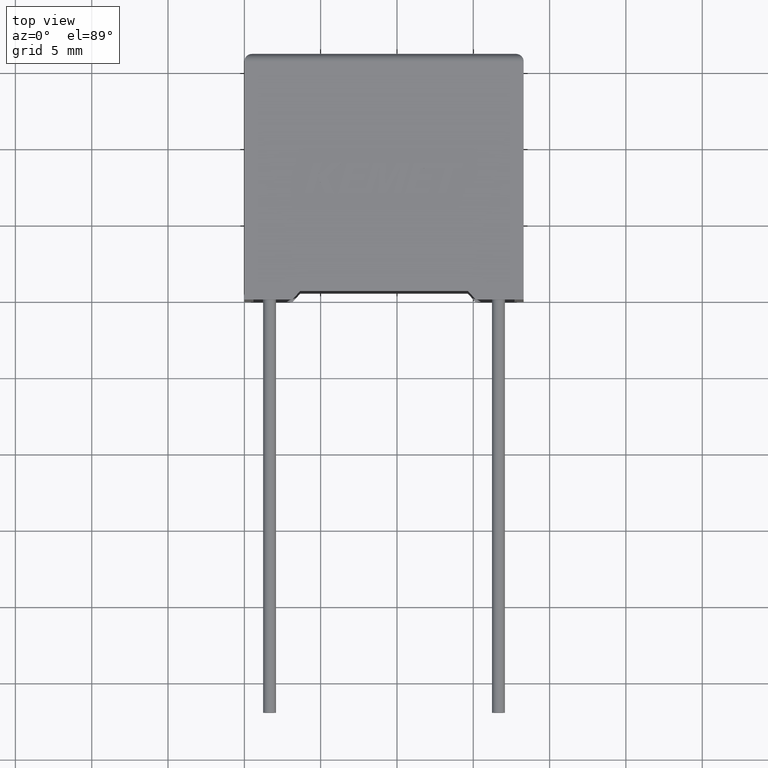
[diagram: clean part render]
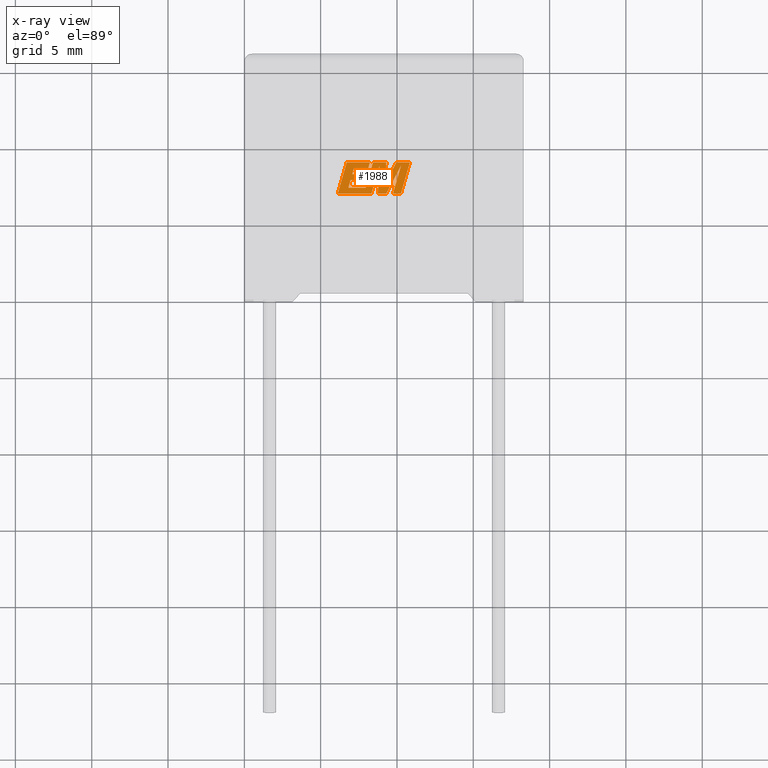
[diagram: x-ray — body ghosted, one internal face saturated and labeled with its STEP entity id]
A machine part, top view, then the same camera in x-ray: the body is ghosted and one INTERNAL B-rep face — a face not visible from any outside direction — is saturated and labeled: STEP entity #1988.
In plain terms, the highlighted planar face has unit normal (0, 0, -1).
Its self-contained STEP definition (entity closure, byte-faithful):
#18 = DIRECTION ( 'NONE',  ( -0.2760118818968579912, -0.9611542233438683525, 0.000000000000000000 ) ) ;
#32 = VECTOR ( 'NONE', #1410, 999.9999999999998863 ) ;
#55 = LINE ( 'NONE', #2403, #1415 ) ;
#104 = ORIENTED_EDGE ( 'NONE', *, *, #2949, .F. ) ;
#106 = LINE ( 'NONE', #1028, #1951 ) ;
#114 = EDGE_CURVE ( 'NONE', #2708, #2861, #2817, .T. ) ;
#200 = CARTESIAN_POINT ( 'NONE',  ( 8.327195703898469858, 6.927829999999937094, 10.19999999999999929 ) ) ;
#215 = DIRECTION ( 'NONE',  ( 1.000000000000000000, 0.000000000000000000, 0.000000000000000000 ) ) ;
#222 = DIRECTION ( 'NONE',  ( -0.2762517575166416606, -0.9610853065513833560, 0.000000000000000000 ) ) ;
#248 = VERTEX_POINT ( 'NONE', #1706 ) ;
#264 = LINE ( 'NONE', #1129, #2506 ) ;
#273 = VERTEX_POINT ( 'NONE', #2152 ) ;
#329 = DIRECTION ( 'NONE',  ( 0.4668459304955080436, 0.8843386665637680277, 0.000000000000000000 ) ) ;
#333 = VECTOR ( 'NONE', #2058, 1000.000000000000227 ) ;
#348 = CARTESIAN_POINT ( 'NONE',  ( 10.25761595853780150, 6.927829999999937094, 10.19999999999999929 ) ) ;
#349 = CARTESIAN_POINT ( 'NONE',  ( 7.947244424658283179, 8.206169767896147604, 10.19999999999999929 ) ) ;
#357 = EDGE_CURVE ( 'NONE', #1014, #1178, #3040, .T. ) ;
#359 = LINE ( 'NONE', #614, #1059 ) ;
#363 = EDGE_CURVE ( 'NONE', #529, #2620, #689, .T. ) ;
#377 = VECTOR ( 'NONE', #2312, 1000.000000000000227 ) ;
#399 = LINE ( 'NONE', #1494, #333 ) ;
#449 = ORIENTED_EDGE ( 'NONE', *, *, #1703, .F. ) ;
#461 = VERTEX_POINT ( 'NONE', #2870 ) ;
#488 = VERTEX_POINT ( 'NONE', #1471 ) ;
#501 = LINE ( 'NONE', #1623, #756 ) ;
#506 = VERTEX_POINT ( 'NONE', #1530 ) ;
#524 = VECTOR ( 'NONE', #2537, 1000.000000000000000 ) ;
#526 = DIRECTION ( 'NONE',  ( 0.05375259206908576670, 0.9985542843760946141, 0.000000000000000000 ) ) ;
#529 = VERTEX_POINT ( 'NONE', #1076 ) ;
#541 = EDGE_LOOP ( 'NONE', ( #2835, #1008, #585, #1069, #956, #1049, #1348, #951, #2865, #1634, #657, #2772, #2273, #104, #449, #3047, #1948, #2730, #1974, #2015, #2062, #746, #1292 ) ) ;
#548 = EDGE_CURVE ( 'NONE', #461, #2708, #784, .T. ) ;
#567 = VECTOR ( 'NONE', #2584, 1000.000000000000227 ) ;
#583 = VECTOR ( 'NONE', #3036, 1000.000000000000000 ) ;
#585 = ORIENTED_EDGE ( 'NONE', *, *, #2530, .F. ) ;
#592 = LINE ( 'NONE', #1534, #713 ) ;
#597 = EDGE_CURVE ( 'NONE', #2396, #2889, #2324, .T. ) ;
#614 = CARTESIAN_POINT ( 'NONE',  ( 10.84693527213674891, 8.977583738474084640, 10.19999999999999929 ) ) ;
#650 = EDGE_CURVE ( 'NONE', #1780, #2108, #1437, .T. ) ;
#657 = ORIENTED_EDGE ( 'NONE', *, *, #1163, .F. ) ;
#674 = LINE ( 'NONE', #1591, #583 ) ;
#689 = LINE ( 'NONE', #2797, #524 ) ;
#713 = VECTOR ( 'NONE', #2479, 1000.000000000000000 ) ;
#736 = DIRECTION ( 'NONE',  ( -0.4443210308329518243, -0.8958676361826801715, 0.000000000000000000 ) ) ;
#746 = ORIENTED_EDGE ( 'NONE', *, *, #2677, .F. ) ;
#756 = VECTOR ( 'NONE', #215, 1000.000000000000000 ) ;
#769 = DIRECTION ( 'NONE',  ( -1.000000000000000000, 0.000000000000000000, 0.000000000000000000 ) ) ;
#772 = EDGE_CURVE ( 'NONE', #2969, #529, #2917, .T. ) ;
#783 = CARTESIAN_POINT ( 'NONE',  ( 7.839011005306755209, 7.827240615357460740, 10.19999999999999929 ) ) ;
#784 = LINE ( 'NONE', #1803, #791 ) ;
#791 = VECTOR ( 'NONE', #329, 1000.000000000000000 ) ;
#856 = LINE ( 'NONE', #1112, #2154 ) ;
#897 = LINE ( 'NONE', #2328, #1053 ) ;
#906 = EDGE_CURVE ( 'NONE', #2620, #1505, #1382, .T. ) ;
#922 = CARTESIAN_POINT ( 'NONE',  ( 8.851161128560534053, 8.752671875984306737, 10.19999999999999929 ) ) ;
#951 = ORIENTED_EDGE ( 'NONE', *, *, #906, .F. ) ;
#956 = ORIENTED_EDGE ( 'NONE', *, *, #548, .F. ) ;
#976 = VERTEX_POINT ( 'NONE', #2415 ) ;
#1007 = CARTESIAN_POINT ( 'NONE',  ( 9.221647422191399102, 7.513213331603875389, 10.19999999999999929 ) ) ;
#1008 = ORIENTED_EDGE ( 'NONE', *, *, #2614, .F. ) ;
#1014 = VERTEX_POINT ( 'NONE', #783 ) ;
#1015 = DIRECTION ( 'NONE',  ( 1.000000000000000000, 0.000000000000000000, 0.000000000000000000 ) ) ;
#1028 = CARTESIAN_POINT ( 'NONE',  ( 8.748873504561524683, 6.927829999999937094, 10.19999999999999929 ) ) ;
#1032 = EDGE_CURVE ( 'NONE', #248, #2577, #2977, .T. ) ;
#1049 = ORIENTED_EDGE ( 'NONE', *, *, #3025, .F. ) ;
#1053 = VECTOR ( 'NONE', #222, 1000.000000000000227 ) ;
#1059 = VECTOR ( 'NONE', #2709, 1000.000000000000000 ) ;
#1069 = ORIENTED_EDGE ( 'NONE', *, *, #114, .F. ) ;
#1076 = CARTESIAN_POINT ( 'NONE',  ( 6.118980910089239167, 6.927829999999936206, 10.19999999999999929 ) ) ;
#1103 = CARTESIAN_POINT ( 'NONE',  ( -0.2224830842431323175, 0.2934434973618236242, 10.19999999999999929 ) ) ;
#1110 = DIRECTION ( 'NONE',  ( 0.2746459304916892830, 0.9615454294334481178, 0.000000000000000000 ) ) ;
#1112 = CARTESIAN_POINT ( 'NONE',  ( 9.736741848859448822, 6.927829999999937094, 10.19999999999999929 ) ) ;
#1129 = CARTESIAN_POINT ( 'NONE',  ( 10.25761595853780150, 6.927829999999937094, 10.19999999999999929 ) ) ;
#1160 = CARTESIAN_POINT ( 'NONE',  ( 7.950472854412912405, 7.317796892129776687, 10.19999999999999929 ) ) ;
#1163 = EDGE_CURVE ( 'NONE', #2889, #2969, #2458, .T. ) ;
#1178 = VERTEX_POINT ( 'NONE', #349 ) ;
#1179 = CARTESIAN_POINT ( 'NONE',  ( 7.067466152442150040, 8.206169767896147604, 10.19999999999999929 ) ) ;
#1243 = CARTESIAN_POINT ( 'NONE',  ( 8.112293221804671717, 8.587423639161658073, 10.19999999999999929 ) ) ;
#1249 = VECTOR ( 'NONE', #1110, 1000.000000000000000 ) ;
#1292 = ORIENTED_EDGE ( 'NONE', *, *, #650, .F. ) ;
#1343 = FACE_OUTER_BOUND ( 'NONE', #541, .T. ) ;
#1348 = ORIENTED_EDGE ( 'NONE', *, *, #2515, .F. ) ;
#1353 = CARTESIAN_POINT ( 'NONE',  ( 9.300475089700450226, 8.977583738474084640, 10.19999999999999929 ) ) ;
#1382 = LINE ( 'NONE', #2997, #567 ) ;
#1383 = CARTESIAN_POINT ( 'NONE',  ( 6.959357382888240018, 7.827240615357460740, 10.19999999999999929 ) ) ;
#1384 = CARTESIAN_POINT ( 'NONE',  ( 9.300475089700450226, 8.977583738474084640, 10.19999999999999929 ) ) ;
#1398 = CARTESIAN_POINT ( 'NONE',  ( 7.839011005306755209, 7.827240615357460740, 10.19999999999999929 ) ) ;
#1410 = DIRECTION ( 'NONE',  ( -0.2765379750249963853, -0.9610029908221278117, 0.000000000000000000 ) ) ;
#1415 = VECTOR ( 'NONE', #769, 1000.000000000000000 ) ;
#1421 = CARTESIAN_POINT ( 'NONE',  ( 8.112293221804671717, 8.587423639161658073, 10.19999999999999929 ) ) ;
#1436 = EDGE_CURVE ( 'NONE', #1873, #2184, #1871, .T. ) ;
#1437 = LINE ( 'NONE', #2181, #2387 ) ;
#1471 = CARTESIAN_POINT ( 'NONE',  ( 7.067466152442150040, 8.206169767896147604, 10.19999999999999929 ) ) ;
#1494 = CARTESIAN_POINT ( 'NONE',  ( 8.851161128560534053, 8.752671875984306737, 10.19999999999999929 ) ) ;
#1505 = VERTEX_POINT ( 'NONE', #922 ) ;
#1530 = CARTESIAN_POINT ( 'NONE',  ( 7.178404472403894232, 8.587423639161658073, 10.19999999999999929 ) ) ;
#1534 = CARTESIAN_POINT ( 'NONE',  ( 7.947244424658283179, 8.206169767896147604, 10.19999999999999929 ) ) ;
#1591 = CARTESIAN_POINT ( 'NONE',  ( 7.178404472403894232, 8.587423639161658073, 10.19999999999999929 ) ) ;
#1617 = EDGE_CURVE ( 'NONE', #2184, #2573, #897, .T. ) ;
#1623 = CARTESIAN_POINT ( 'NONE',  ( 6.959357382888240018, 7.827240615357460740, 10.19999999999999929 ) ) ;
#1634 = ORIENTED_EDGE ( 'NONE', *, *, #772, .F. ) ;
#1653 = DIRECTION ( 'NONE',  ( 0.2763139702539113007, 0.9610674221107073922, 0.000000000000000000 ) ) ;
#1661 = CARTESIAN_POINT ( 'NONE',  ( 6.708817521994718369, 8.977583738474084640, 10.19999999999999929 ) ) ;
#1703 = EDGE_CURVE ( 'NONE', #1178, #488, #592, .T. ) ;
#1706 = CARTESIAN_POINT ( 'NONE',  ( 6.814202693454946669, 7.317796892129776687, 10.19999999999999929 ) ) ;
#1750 = CARTESIAN_POINT ( 'NONE',  ( 8.427557490167984611, 8.977583738474084640, 10.19999999999999929 ) ) ;
#1780 = VERTEX_POINT ( 'NONE', #2027 ) ;
#1803 = CARTESIAN_POINT ( 'NONE',  ( 9.295319520239521793, 6.927829999999937094, 10.19999999999999929 ) ) ;
#1843 = VECTOR ( 'NONE', #2275, 1000.000000000000000 ) ;
#1848 = DIRECTION ( 'NONE',  ( 0.2793947940878294123, 0.9601763114327593884, 0.000000000000000000 ) ) ;
#1859 = VECTOR ( 'NONE', #1848, 1000.000000000000227 ) ;
#1871 = LINE ( 'NONE', #1353, #2649 ) ;
#1873 = VERTEX_POINT ( 'NONE', #1384 ) ;
#1926 = EDGE_CURVE ( 'NONE', #2573, #248, #55, .T. ) ;
#1948 = ORIENTED_EDGE ( 'NONE', *, *, #2630, .F. ) ;
#1951 = VECTOR ( 'NONE', #2932, 1000.000000000000000 ) ;
#1974 = ORIENTED_EDGE ( 'NONE', *, *, #1926, .F. ) ;
#1988 = ADVANCED_FACE ( 'NONE', ( #1343 ), #2286, .T. ) ;
#2015 = ORIENTED_EDGE ( 'NONE', *, *, #1617, .F. ) ;
#2027 = CARTESIAN_POINT ( 'NONE',  ( 9.947927223384223083, 8.977583738474084640, 10.19999999999999929 ) ) ;
#2052 = DIRECTION ( 'NONE',  ( 0.000000000000000000, 0.000000000000000000, -1.000000000000000000 ) ) ;
#2058 = DIRECTION ( 'NONE',  ( -0.05596501978069369498, -0.9984327301130239141, 0.000000000000000000 ) ) ;
#2062 = ORIENTED_EDGE ( 'NONE', *, *, #1436, .F. ) ;
#2099 = VERTEX_POINT ( 'NONE', #348 ) ;
#2108 = VERTEX_POINT ( 'NONE', #2474 ) ;
#2152 = CARTESIAN_POINT ( 'NONE',  ( 10.84693527213674891, 8.977583738474084640, 10.19999999999999929 ) ) ;
#2154 = VECTOR ( 'NONE', #1015, 1000.000000000000000 ) ;
#2181 = CARTESIAN_POINT ( 'NONE',  ( 9.947927223384223083, 8.977583738474084640, 10.19999999999999929 ) ) ;
#2184 = VERTEX_POINT ( 'NONE', #1750 ) ;
#2203 = EDGE_CURVE ( 'NONE', #273, #1780, #359, .T. ) ;
#2273 = ORIENTED_EDGE ( 'NONE', *, *, #2875, .F. ) ;
#2275 = DIRECTION ( 'NONE',  ( -1.000000000000000000, 0.000000000000000000, 0.000000000000000000 ) ) ;
#2286 = PLANE ( 'NONE',  #2754 ) ;
#2312 = DIRECTION ( 'NONE',  ( 0.2732148821746286371, 0.9619530280415482526, 0.000000000000000000 ) ) ;
#2317 = CARTESIAN_POINT ( 'NONE',  ( 8.223106891968908982, 8.977583738474084640, 10.19999999999999929 ) ) ;
#2324 = LINE ( 'NONE', #1421, #377 ) ;
#2328 = CARTESIAN_POINT ( 'NONE',  ( 8.427557490167984611, 8.977583738474084640, 10.19999999999999929 ) ) ;
#2346 = DIRECTION ( 'NONE',  ( -1.000000000000000000, 0.000000000000000000, 0.000000000000000000 ) ) ;
#2367 = LINE ( 'NONE', #1179, #1859 ) ;
#2381 = LINE ( 'NONE', #1007, #2707 ) ;
#2387 = VECTOR ( 'NONE', #736, 1000.000000000000227 ) ;
#2396 = VERTEX_POINT ( 'NONE', #1243 ) ;
#2403 = CARTESIAN_POINT ( 'NONE',  ( 7.950472854412912405, 7.317796892129776687, 10.19999999999999929 ) ) ;
#2404 = CARTESIAN_POINT ( 'NONE',  ( 10.26329998931311138, 8.761459686718483297, 10.19999999999999929 ) ) ;
#2415 = CARTESIAN_POINT ( 'NONE',  ( 8.748873504561524683, 6.927829999999937094, 10.19999999999999929 ) ) ;
#2435 = VECTOR ( 'NONE', #2945, 1000.000000000000114 ) ;
#2458 = LINE ( 'NONE', #2763, #1843 ) ;
#2474 = CARTESIAN_POINT ( 'NONE',  ( 9.221647422191399102, 7.513213331603875389, 10.19999999999999929 ) ) ;
#2479 = DIRECTION ( 'NONE',  ( -1.000000000000000000, 0.000000000000000000, 0.000000000000000000 ) ) ;
#2506 = VECTOR ( 'NONE', #1653, 1000.000000000000114 ) ;
#2515 = EDGE_CURVE ( 'NONE', #1505, #976, #399, .T. ) ;
#2530 = EDGE_CURVE ( 'NONE', #2861, #2099, #856, .T. ) ;
#2537 = DIRECTION ( 'NONE',  ( 1.000000000000000000, 0.000000000000000000, 0.000000000000000000 ) ) ;
#2567 = CARTESIAN_POINT ( 'NONE',  ( 9.736741848859448822, 6.927829999999937094, 10.19999999999999929 ) ) ;
#2573 = VERTEX_POINT ( 'NONE', #1160 ) ;
#2577 = VERTEX_POINT ( 'NONE', #1383 ) ;
#2584 = DIRECTION ( 'NONE',  ( 0.2759782365590697228, 0.9611638845408965182, 0.000000000000000000 ) ) ;
#2614 = EDGE_CURVE ( 'NONE', #2099, #273, #264, .T. ) ;
#2620 = VERTEX_POINT ( 'NONE', #200 ) ;
#2630 = EDGE_CURVE ( 'NONE', #2577, #1014, #501, .T. ) ;
#2637 = VECTOR ( 'NONE', #18, 1000.000000000000227 ) ;
#2649 = VECTOR ( 'NONE', #3017, 1000.000000000000000 ) ;
#2674 = CARTESIAN_POINT ( 'NONE',  ( 6.814202693454946669, 7.317796892129776687, 10.19999999999999929 ) ) ;
#2677 = EDGE_CURVE ( 'NONE', #2108, #1873, #2381, .T. ) ;
#2707 = VECTOR ( 'NONE', #526, 1000.000000000000000 ) ;
#2708 = VERTEX_POINT ( 'NONE', #2404 ) ;
#2709 = DIRECTION ( 'NONE',  ( -1.000000000000000000, 0.000000000000000000, 0.000000000000000000 ) ) ;
#2730 = ORIENTED_EDGE ( 'NONE', *, *, #1032, .F. ) ;
#2754 = AXIS2_PLACEMENT_3D ( 'NONE', #1103, #2052, #2346 ) ;
#2763 = CARTESIAN_POINT ( 'NONE',  ( 8.223106891968908982, 8.977583738474084640, 10.19999999999999929 ) ) ;
#2772 = ORIENTED_EDGE ( 'NONE', *, *, #597, .F. ) ;
#2785 = CARTESIAN_POINT ( 'NONE',  ( 10.26329998931311138, 8.761459686718483297, 10.19999999999999929 ) ) ;
#2797 = CARTESIAN_POINT ( 'NONE',  ( 7.962345746009985348, 6.927829999999937094, 10.19999999999999929 ) ) ;
#2811 = CARTESIAN_POINT ( 'NONE',  ( 6.708817521994718369, 8.977583738474084640, 10.19999999999999929 ) ) ;
#2817 = LINE ( 'NONE', #2785, #2637 ) ;
#2835 = ORIENTED_EDGE ( 'NONE', *, *, #2203, .F. ) ;
#2861 = VERTEX_POINT ( 'NONE', #2567 ) ;
#2865 = ORIENTED_EDGE ( 'NONE', *, *, #363, .F. ) ;
#2870 = CARTESIAN_POINT ( 'NONE',  ( 9.295319520239521793, 6.927829999999937094, 10.19999999999999929 ) ) ;
#2875 = EDGE_CURVE ( 'NONE', #506, #2396, #674, .T. ) ;
#2889 = VERTEX_POINT ( 'NONE', #2317 ) ;
#2917 = LINE ( 'NONE', #1661, #32 ) ;
#2932 = DIRECTION ( 'NONE',  ( 1.000000000000000000, 0.000000000000000000, 0.000000000000000000 ) ) ;
#2945 = DIRECTION ( 'NONE',  ( 0.2740217765954066076, 0.9617234872620595842, 0.000000000000000000 ) ) ;
#2949 = EDGE_CURVE ( 'NONE', #488, #506, #2367, .T. ) ;
#2969 = VERTEX_POINT ( 'NONE', #2811 ) ;
#2977 = LINE ( 'NONE', #2674, #2435 ) ;
#2997 = CARTESIAN_POINT ( 'NONE',  ( 8.327195703898469858, 6.927829999999937094, 10.19999999999999929 ) ) ;
#3017 = DIRECTION ( 'NONE',  ( -1.000000000000000000, 0.000000000000000000, 0.000000000000000000 ) ) ;
#3025 = EDGE_CURVE ( 'NONE', #976, #461, #106, .T. ) ;
#3036 = DIRECTION ( 'NONE',  ( 1.000000000000000000, 0.000000000000000000, 0.000000000000000000 ) ) ;
#3040 = LINE ( 'NONE', #1398, #1249 ) ;
#3047 = ORIENTED_EDGE ( 'NONE', *, *, #357, .F. ) ;